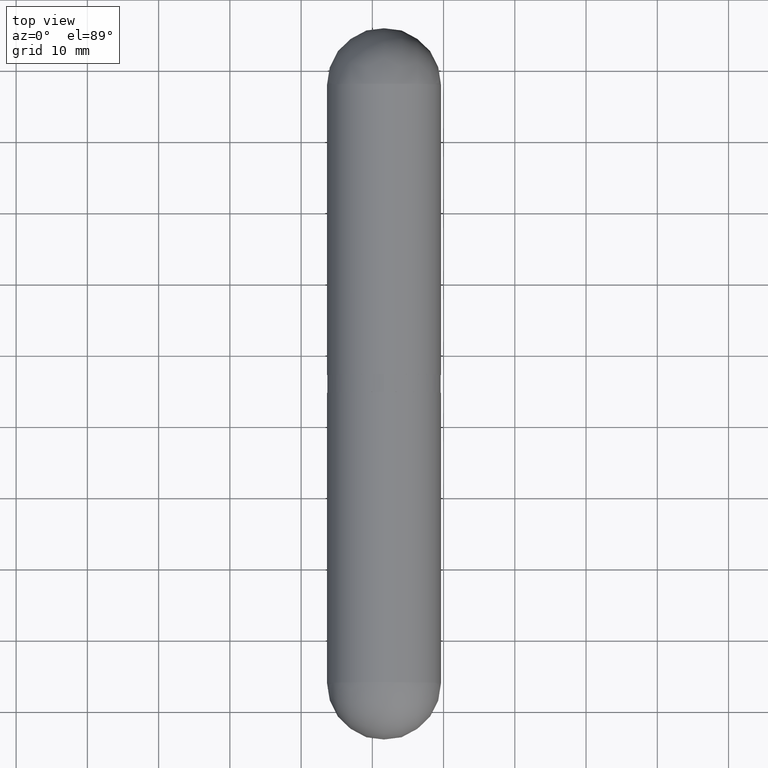
[diagram: clean part render]
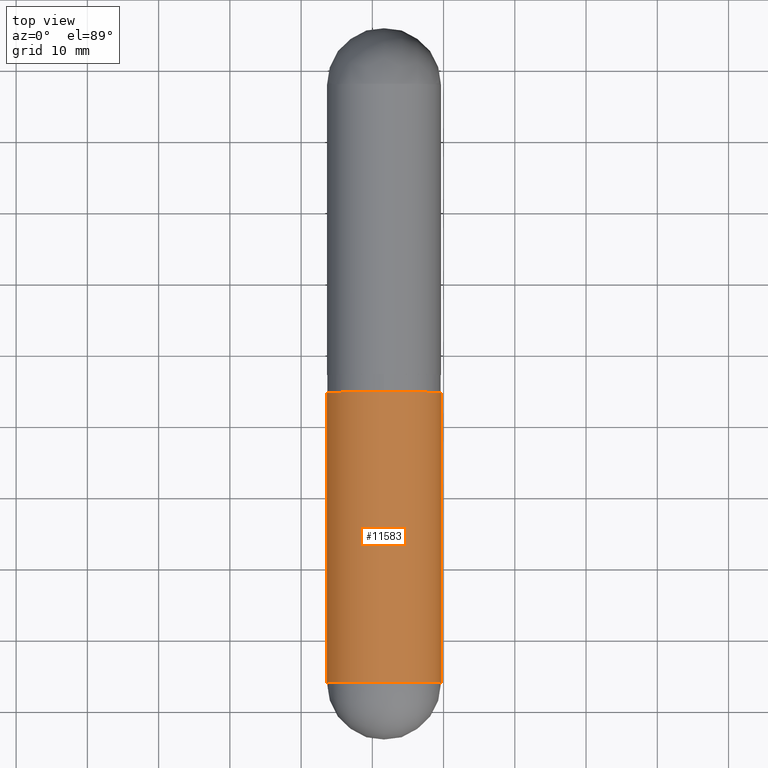
[diagram: same view with one face highlighted and labeled with its STEP entity id]
A machine part, top view. The second image highlights one B-rep face of the part: STEP entity #11583.
In plain terms, the highlighted cylindrical surface (bore or boss wall) has radius 8 mm, axis along (-0, -1, -0).
Its self-contained STEP definition (entity closure, byte-faithful):
#167 = CARTESIAN_POINT ( 'NONE',  ( 0.000000000000000000, 48.75000000000000000, 0.000000000000000000 ) ) ;
#260 = EDGE_LOOP ( 'NONE', ( #9191, #7318, #7129, #12538 ) ) ;
#534 = VECTOR ( 'NONE', #2005, 1000.000000000000000 ) ;
#547 = CARTESIAN_POINT ( 'NONE',  ( 0.000000000000000000, 48.75000000000000000, 0.000000000000000000 ) ) ;
#713 = VERTEX_POINT ( 'NONE', #2116 ) ;
#1120 = FACE_OUTER_BOUND ( 'NONE', #260, .T. ) ;
#1126 = DIRECTION ( 'NONE',  ( 0.000000000000000000, 1.000000000000000000, 0.000000000000000000 ) ) ;
#1900 = VERTEX_POINT ( 'NONE', #6075 ) ;
#1948 = EDGE_LOOP ( 'NONE', ( #4628 ) ) ;
#2005 = DIRECTION ( 'NONE',  ( 0.000000000000000000, 1.000000000000000000, 0.000000000000000000 ) ) ;
#2023 = VECTOR ( 'NONE', #11292, 1000.000000000000000 ) ;
#2093 = CARTESIAN_POINT ( 'NONE',  ( 0.000000000000000000, 8.750000000000000000, 0.000000000000000000 ) ) ;
#2116 = CARTESIAN_POINT ( 'NONE',  ( -4.093222977919000805, 48.75000000000000000, -6.873538073876939158 ) ) ;
#2155 = DIRECTION ( 'NONE',  ( 0.000000000000000000, 0.000000000000000000, 1.000000000000000000 ) ) ;
#2657 = CIRCLE ( 'NONE', #9918, 8.000000000000000000 ) ;
#3231 = CARTESIAN_POINT ( 'NONE',  ( 4.093222977918994587, 48.75000000000000000, -6.873538073876943599 ) ) ;
#3559 = DIRECTION ( 'NONE',  ( 0.000000000000000000, 0.000000000000000000, -1.000000000000000000 ) ) ;
#3603 = DIRECTION ( 'NONE',  ( 0.000000000000000000, 1.000000000000000000, 0.000000000000000000 ) ) ;
#4466 = CARTESIAN_POINT ( 'NONE',  ( 0.000000000000000000, 8.000000000000000000, 0.000000000000000000 ) ) ;
#4628 = ORIENTED_EDGE ( 'NONE', *, *, #11328, .T. ) ;
#4905 = EDGE_CURVE ( 'NONE', #713, #6728, #6253, .T. ) ;
#5433 = CYLINDRICAL_SURFACE ( 'NONE', #7594, 8.000000000000000000 ) ;
#5718 = CARTESIAN_POINT ( 'NONE',  ( -4.093222977918994587, 8.750000000000000000, -6.873538073876943599 ) ) ;
#5764 = LINE ( 'NONE', #5718, #534 ) ;
#5982 = EDGE_CURVE ( 'NONE', #1900, #6728, #12692, .T. ) ;
#6075 = CARTESIAN_POINT ( 'NONE',  ( 4.093222977918994587, 8.750000000000000000, -6.873538073876943599 ) ) ;
#6253 = CIRCLE ( 'NONE', #8139, 8.000000000000000000 ) ;
#6380 = DIRECTION ( 'NONE',  ( 0.000000000000000000, 0.000000000000000000, -1.000000000000000000 ) ) ;
#6728 = VERTEX_POINT ( 'NONE', #3231 ) ;
#7129 = ORIENTED_EDGE ( 'NONE', *, *, #8046, .T. ) ;
#7318 = ORIENTED_EDGE ( 'NONE', *, *, #10299, .F. ) ;
#7594 = AXIS2_PLACEMENT_3D ( 'NONE', #547, #11187, #6380 ) ;
#7751 = CIRCLE ( 'NONE', #9218, 8.000000000000000000 ) ;
#8046 = EDGE_CURVE ( 'NONE', #10905, #1900, #7751, .T. ) ;
#8139 = AXIS2_PLACEMENT_3D ( 'NONE', #167, #1126, #2155 ) ;
#8885 = DIRECTION ( 'NONE',  ( -0.000000000000000000, -1.000000000000000000, -0.000000000000000000 ) ) ;
#9191 = ORIENTED_EDGE ( 'NONE', *, *, #4905, .F. ) ;
#9218 = AXIS2_PLACEMENT_3D ( 'NONE', #2093, #8885, #9972 ) ;
#9342 = CARTESIAN_POINT ( 'NONE',  ( 0.000000000000000000, 8.000000000000000000, -8.000000000000000000 ) ) ;
#9769 = CARTESIAN_POINT ( 'NONE',  ( -4.093222977918994587, 8.750000000000000000, -6.873538073876943599 ) ) ;
#9918 = AXIS2_PLACEMENT_3D ( 'NONE', #4466, #3603, #3559 ) ;
#9972 = DIRECTION ( 'NONE',  ( 0.000000000000000000, 0.000000000000000000, 1.000000000000000000 ) ) ;
#10299 = EDGE_CURVE ( 'NONE', #10905, #713, #5764, .T. ) ;
#10905 = VERTEX_POINT ( 'NONE', #9769 ) ;
#11187 = DIRECTION ( 'NONE',  ( -0.000000000000000000, -1.000000000000000000, -0.000000000000000000 ) ) ;
#11250 = CARTESIAN_POINT ( 'NONE',  ( 4.093222977918994587, 8.750000000000000000, -6.873538073876943599 ) ) ;
#11292 = DIRECTION ( 'NONE',  ( 0.000000000000000000, 1.000000000000000000, 0.000000000000000000 ) ) ;
#11328 = EDGE_CURVE ( 'NONE', #11660, #11660, #2657, .T. ) ;
#11583 = ADVANCED_FACE ( 'NONE', ( #1120, #11613 ), #5433, .T. ) ;
#11613 = FACE_OUTER_BOUND ( 'NONE', #1948, .T. ) ;
#11660 = VERTEX_POINT ( 'NONE', #9342 ) ;
#12538 = ORIENTED_EDGE ( 'NONE', *, *, #5982, .T. ) ;
#12692 = LINE ( 'NONE', #11250, #2023 ) ;